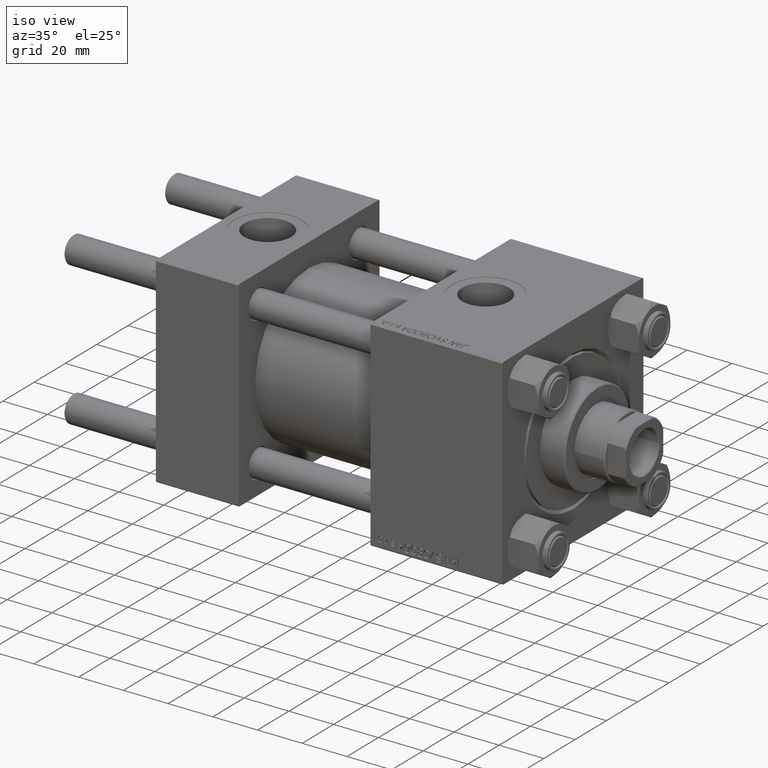
[diagram: clean part render]
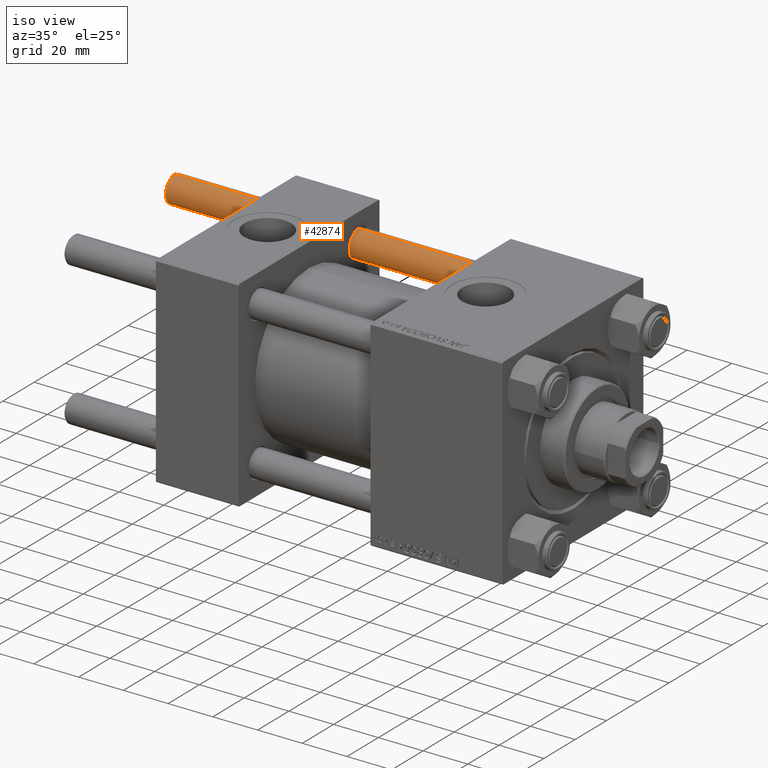
[diagram: same view with one face highlighted and labeled with its STEP entity id]
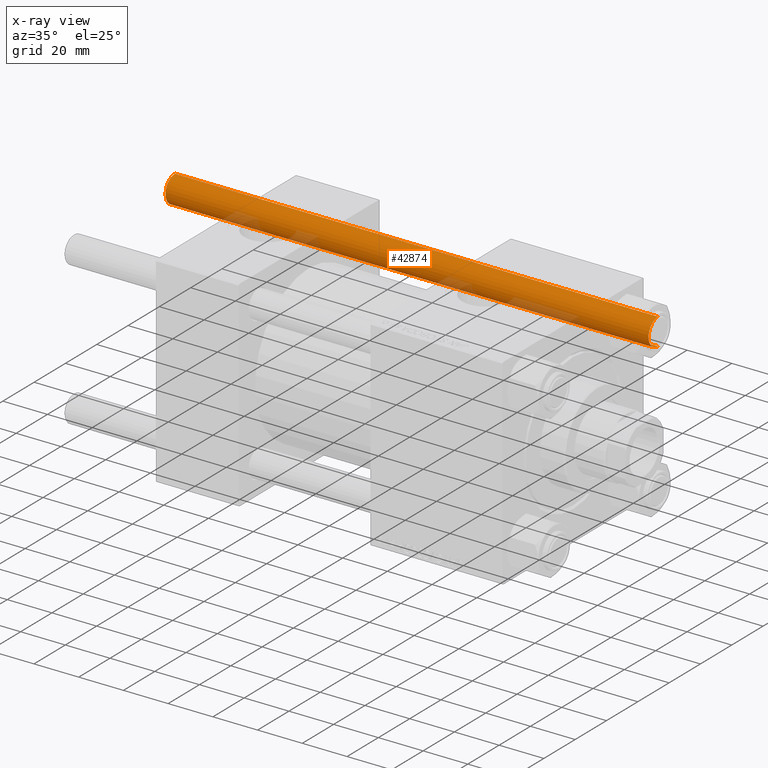
[diagram: x-ray of the same camera — body ghosted, the highlighted face saturated]
A machine part, iso view. The second image highlights one B-rep face of the part: STEP entity #42874.
The next image is the same camera in x-ray: the body ghosted, the highlighted face saturated — about 10% of this face is hidden behind the body in this view.
In plain terms, the highlighted cylindrical surface (edge-blend (fillet) strip) has radius 6 mm, axis along (-1, -0, -0).
Its self-contained STEP definition (entity closure, byte-faithful):
#2151 = AXIS2_PLACEMENT_3D ( 'NONE', #35268, #8239, #44170 ) ;
#3288 = EDGE_CURVE ( 'NONE', #17968, #28673, #48652, .T. ) ;
#7619 = DIRECTION ( 'NONE',  ( -0.000000000000000000, -0.000000000000000000, -1.000000000000000000 ) ) ;
#8239 = DIRECTION ( 'NONE',  ( 0.000000000000000000, 0.000000000000000000, -1.000000000000000000 ) ) ;
#8762 = DIRECTION ( 'NONE',  ( 1.000000000000000000, 0.000000000000000000, 0.000000000000000000 ) ) ;
#9992 = VECTOR ( 'NONE', #16549, 1000.000000000000000 ) ;
#11714 = VECTOR ( 'NONE', #36076, 1000.000000000000000 ) ;
#14321 = ORIENTED_EDGE ( 'NONE', *, *, #3288, .T. ) ;
#15487 = CARTESIAN_POINT ( 'NONE',  ( 0.000000000000000000, 0.000000000000000000, 217.0000000000000000 ) ) ;
#15808 = CARTESIAN_POINT ( 'NONE',  ( 6.000000000000000888, 7.347880794884120722E-16, 0.4999999999999449329 ) ) ;
#16058 = VERTEX_POINT ( 'NONE', #21521 ) ;
#16508 = EDGE_CURVE ( 'NONE', #16058, #17968, #34815, .T. ) ;
#16549 = DIRECTION ( 'NONE',  ( -0.000000000000000000, -0.000000000000000000, -1.000000000000000000 ) ) ;
#17968 = VERTEX_POINT ( 'NONE', #23078 ) ;
#18785 = CIRCLE ( 'NONE', #48099, 6.000000000000000888 ) ;
#21521 = CARTESIAN_POINT ( 'NONE',  ( 6.000000000000000888, 7.347880794884120722E-16, 216.4999999999999716 ) ) ;
#23078 = CARTESIAN_POINT ( 'NONE',  ( -6.000000000000000888, 0.000000000000000000, 216.4999999999999716 ) ) ;
#23598 = DIRECTION ( 'NONE',  ( -1.000000000000000000, 0.000000000000000000, 0.000000000000000000 ) ) ;
#24664 = LINE ( 'NONE', #28344, #9992 ) ;
#25302 = ORIENTED_EDGE ( 'NONE', *, *, #25523, .F. ) ;
#25523 = EDGE_CURVE ( 'NONE', #16058, #44213, #24664, .T. ) ;
#25903 = CARTESIAN_POINT ( 'NONE',  ( -6.000000000000000888, 0.000000000000000000, 0.4999999999999449329 ) ) ;
#28344 = CARTESIAN_POINT ( 'NONE',  ( 6.000000000000000888, 7.347880794884120722E-16, 217.0000000000000000 ) ) ;
#28673 = VERTEX_POINT ( 'NONE', #25903 ) ;
#32108 = ORIENTED_EDGE ( 'NONE', *, *, #16508, .T. ) ;
#32285 = EDGE_CURVE ( 'NONE', #28673, #44213, #18785, .T. ) ;
#32347 = DIRECTION ( 'NONE',  ( -0.000000000000000000, -0.000000000000000000, 1.000000000000000000 ) ) ;
#33112 = EDGE_LOOP ( 'NONE', ( #25302, #32108, #14321, #48535 ) ) ;
#34815 = CIRCLE ( 'NONE', #2151, 6.000000000000000888 ) ;
#35268 = CARTESIAN_POINT ( 'NONE',  ( 0.000000000000000000, 0.000000000000000000, 216.4999999999999716 ) ) ;
#35418 = FACE_OUTER_BOUND ( 'NONE', #33112, .T. ) ;
#35569 = CARTESIAN_POINT ( 'NONE',  ( -6.000000000000000888, 0.000000000000000000, 217.0000000000000000 ) ) ;
#36076 = DIRECTION ( 'NONE',  ( -0.000000000000000000, -0.000000000000000000, -1.000000000000000000 ) ) ;
#42874 = ADVANCED_FACE ( 'NONE', ( #35418 ), #51416, .T. ) ;
#44170 = DIRECTION ( 'NONE',  ( 1.000000000000000000, 0.000000000000000000, 0.000000000000000000 ) ) ;
#44213 = VERTEX_POINT ( 'NONE', #15808 ) ;
#48099 = AXIS2_PLACEMENT_3D ( 'NONE', #48613, #32347, #8762 ) ;
#48535 = ORIENTED_EDGE ( 'NONE', *, *, #32285, .T. ) ;
#48613 = CARTESIAN_POINT ( 'NONE',  ( 0.000000000000000000, 0.000000000000000000, 0.4999999999999449329 ) ) ;
#48652 = LINE ( 'NONE', #35569, #11714 ) ;
#50367 = AXIS2_PLACEMENT_3D ( 'NONE', #15487, #7619, #23598 ) ;
#51416 = CYLINDRICAL_SURFACE ( 'NONE', #50367, 6.000000000000000888 ) ;